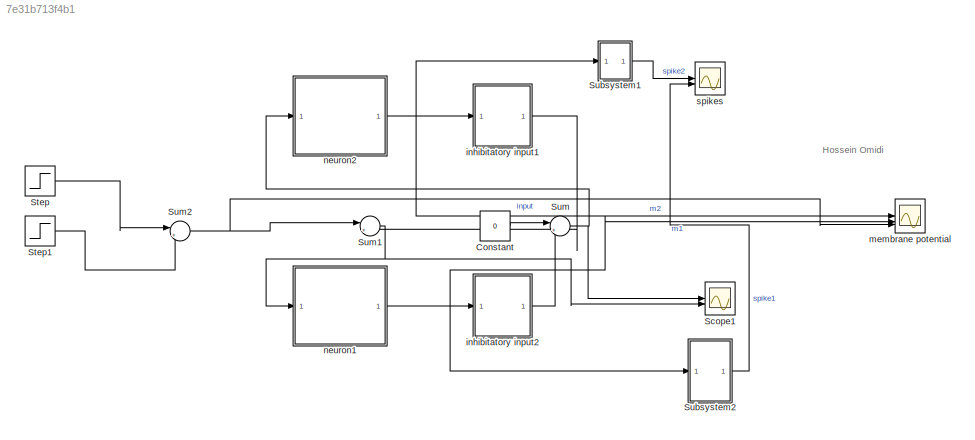
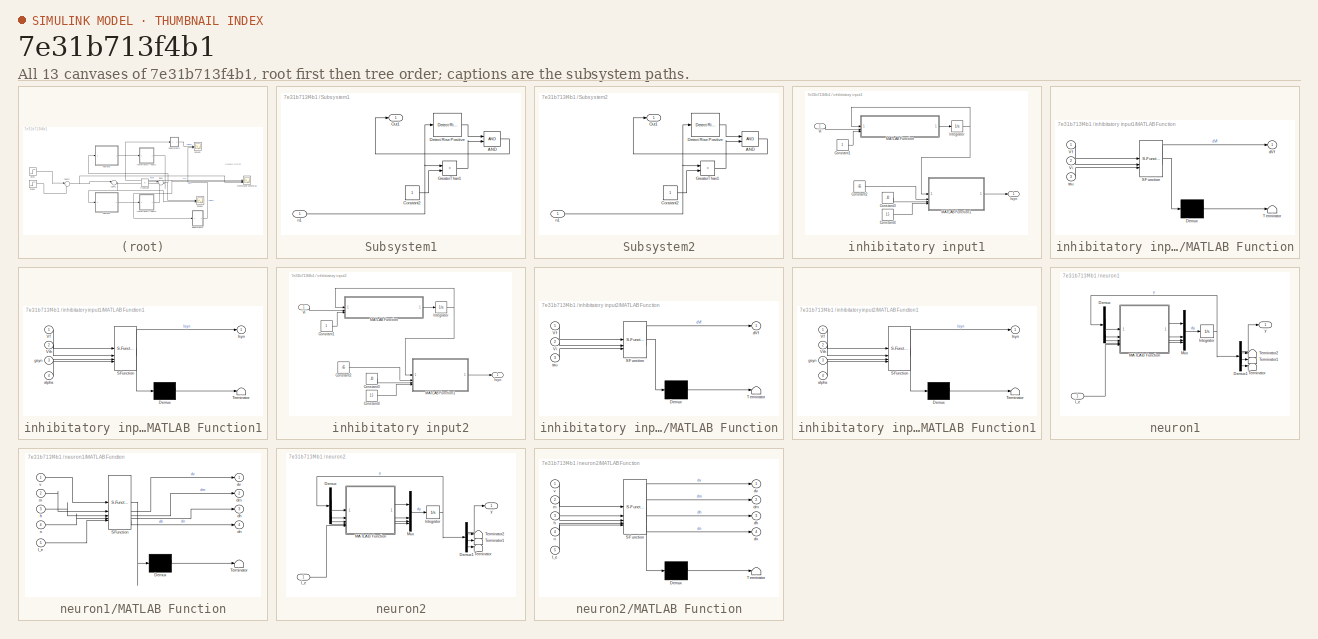
[diagram: thumbnail index - all 13 canvases of the model, root first then tree order]
MODEL slx_7e31b713f4b1
KIND model
CONFIG AbsTol = auto
CONFIG EnableMultiTasking = off
CONFIG FixedStep = auto
CONFIG MaxStep = auto
CONFIG MinStep = auto
CONFIG RelTol = 1e-3
CONFIG SampleTimeConstraint = Unconstrained
CONFIG SolverName = VariableStepAuto
CONFIG StartTime = 0.0
CONFIG StopTime = 1
BLOCK [Constant] Constant
  Value = 0
BLOCK [Scope] Scope1
  Floating = off
  NumInputPorts = 2
  ScopeSpecificationString = Simulink.scopes.TimeScopeBlockCfg('CurrentConfiguration', extmgr.ConfigurationSet(extmgr.Configuration('Core','General UI',true),extmgr.Configuration('Core','Source UI',true),extmgr.Configuration('Sources','WiredSimulink',true,'DataLoggingVariableName','ScopeData1'),extmgr.Configuration('Visuals','Time Domain',true,'SerializedDisplays',{struct('MinYLimReal','-12.5','MaxYLimReal','12.5','YLabelReal...<+1422ch>
BLOCK [Step] Step
  After = 10
  SampleTime = 0
  Time = .3
BLOCK [Step] Step1
  After = -10
  SampleTime = 0
  Time = .31
BLOCK [SubSystem] Subsystem1
BLOCK [Logic] Subsystem1/AND
  AllPortsSameDT = off
  IconShape = distinctive
  OutDataTypeStr = boolean
BLOCK [Constant] Subsystem1/Constant2
BLOCK [Reference] Subsystem1/Detect Rise Positive  REF=simulink/Logic and Bit
Operations/Detect Rise
Positive
  SourceBlock = simulink/Logic and Bit\nOperations/Detect Rise\nPositive
  SourceType = Detect Rise Positive
BLOCK [RelationalOperator] Subsystem1/GreaterThan1
  InputSameDT = off
  Operator = >
  OutDataTypeStr = boolean
  RndMeth = Simplest
BLOCK [Outport] Subsystem1/Out1
BLOCK [Inport] Subsystem1/n1
BLOCK [SubSystem] Subsystem2
BLOCK [Logic] Subsystem2/AND
  AllPortsSameDT = off
  IconShape = distinctive
  OutDataTypeStr = boolean
BLOCK [Constant] Subsystem2/Constant2
BLOCK [Reference] Subsystem2/Detect Rise Positive  REF=simulink/Logic and Bit
Operations/Detect Rise
Positive
  SourceBlock = simulink/Logic and Bit\nOperations/Detect Rise\nPositive
  SourceType = Detect Rise Positive
BLOCK [RelationalOperator] Subsystem2/GreaterThan1
  InputSameDT = off
  Operator = >
  OutDataTypeStr = boolean
  RndMeth = Simplest
BLOCK [Outport] Subsystem2/Out1
BLOCK [Inport] Subsystem2/n1
BLOCK [Sum] Sum
  Inputs = |++
BLOCK [Sum] Sum1
  Inputs = |++
BLOCK [Sum] Sum2
  Inputs = |++
BLOCK [SubSystem] inhibitatory input1
BLOCK [Constant] inhibitatory input1/Constant1
BLOCK [Constant] inhibitatory input1/Constant2
  Value = -65
BLOCK [Constant] inhibitatory input1/Constant3
  Value = -10
BLOCK [Constant] inhibitatory input1/Constant4
  Value = 1.5
BLOCK [Integrator] inhibitatory input1/Integrator
BLOCK [Outport] inhibitatory input1/Isyn
BLOCK [SubSystem] inhibitatory input1/MATLAB Function
  ErrorFcn = Stateflow.Translate.translate
  LibrarySourceBlock = simulink/User-Defined\nFunctions/MATLAB Function
  PermitHierarchicalResolution = ExplicitOnly
  SFBlockType = MATLAB Function
  TreatAsAtomicUnit = on
BLOCK [Demux] inhibitatory input1/MATLAB Function/ Demux 
  Outputs = 1
BLOCK [S-Function] inhibitatory input1/MATLAB Function/ SFunction 
  EnableBusSupport = on
  FunctionName = sf_sfun
  PortCounts = [3 2]
  SFcnIsStateOwnerBlock = off
  SFunctionDeploymentMode = off
  Tag = Stateflow S-Function 5
BLOCK [Terminator] inhibitatory input1/MATLAB Function/ Terminator 
BLOCK [Inport] inhibitatory input1/MATLAB Function/Vf
BLOCK [Inport] inhibitatory input1/MATLAB Function/Vi
  Port = 2
BLOCK [Outport] inhibitatory input1/MATLAB Function/dVf
BLOCK [Inport] inhibitatory input1/MATLAB Function/tau
  Port = 3
BLOCK [SubSystem] inhibitatory input1/MATLAB Function1
  ErrorFcn = Stateflow.Translate.translate
  LibrarySourceBlock = simulink/User-Defined\nFunctions/MATLAB Function
  PermitHierarchicalResolution = ExplicitOnly
  SFBlockType = MATLAB Function
  TreatAsAtomicUnit = on
BLOCK [Demux] inhibitatory input1/MATLAB Function1/ Demux 
  Outputs = 1
BLOCK [S-Function] inhibitatory input1/MATLAB Function1/ SFunction 
  EnableBusSupport = on
  FunctionName = sf_sfun
  PortCounts = [4 2]
  SFcnIsStateOwnerBlock = off
  SFunctionDeploymentMode = off
  Tag = Stateflow S-Function 6
BLOCK [Terminator] inhibitatory input1/MATLAB Function1/ Terminator 
BLOCK [Outport] inhibitatory input1/MATLAB Function1/Isyn
BLOCK [Inport] inhibitatory input1/MATLAB Function1/Vf
BLOCK [Inport] inhibitatory input1/MATLAB Function1/Vth
  Port = 2
BLOCK [Inport] inhibitatory input1/MATLAB Function1/alpha
  Port = 4
BLOCK [Inport] inhibitatory input1/MATLAB Function1/gsyn
  Port = 3
BLOCK [Inport] inhibitatory input1/Vi
BLOCK [SubSystem] inhibitatory input2
BLOCK [Constant] inhibitatory input2/Constant1
BLOCK [Constant] inhibitatory input2/Constant2
  Value = -65
BLOCK [Constant] inhibitatory input2/Constant3
  Value = -10
BLOCK [Constant] inhibitatory input2/Constant4
  Value = 1.5
BLOCK [Integrator] inhibitatory input2/Integrator
BLOCK [Outport] inhibitatory input2/Isyn
BLOCK [SubSystem] inhibitatory input2/MATLAB Function
  ErrorFcn = Stateflow.Translate.translate
  LibrarySourceBlock = simulink/User-Defined\nFunctions/MATLAB Function
  PermitHierarchicalResolution = ExplicitOnly
  SFBlockType = MATLAB Function
  TreatAsAtomicUnit = on
BLOCK [Demux] inhibitatory input2/MATLAB Function/ Demux 
  Outputs = 1
BLOCK [S-Function] inhibitatory input2/MATLAB Function/ SFunction 
  EnableBusSupport = on
  FunctionName = sf_sfun
  PortCounts = [3 2]
  SFcnIsStateOwnerBlock = off
  SFunctionDeploymentMode = off
  Tag = Stateflow S-Function 1
BLOCK [Terminator] inhibitatory input2/MATLAB Function/ Terminator 
BLOCK [Inport] inhibitatory input2/MATLAB Function/Vf
BLOCK [Inport] inhibitatory input2/MATLAB Function/Vi
  Port = 2
BLOCK [Outport] inhibitatory input2/MATLAB Function/dVf
BLOCK [Inport] inhibitatory input2/MATLAB Function/tau
  Port = 3
BLOCK [SubSystem] inhibitatory input2/MATLAB Function1
  ErrorFcn = Stateflow.Translate.translate
  LibrarySourceBlock = simulink/User-Defined\nFunctions/MATLAB Function
  PermitHierarchicalResolution = ExplicitOnly
  SFBlockType = MATLAB Function
  TreatAsAtomicUnit = on
BLOCK [Demux] inhibitatory input2/MATLAB Function1/ Demux 
  Outputs = 1
BLOCK [S-Function] inhibitatory input2/MATLAB Function1/ SFunction 
  EnableBusSupport = on
  FunctionName = sf_sfun
  PortCounts = [4 2]
  SFcnIsStateOwnerBlock = off
  SFunctionDeploymentMode = off
  Tag = Stateflow S-Function 3
BLOCK [Terminator] inhibitatory input2/MATLAB Function1/ Terminator 
BLOCK [Outport] inhibitatory input2/MATLAB Function1/Isyn
BLOCK [Inport] inhibitatory input2/MATLAB Function1/Vf
BLOCK [Inport] inhibitatory input2/MATLAB Function1/Vth
  Port = 2
BLOCK [Inport] inhibitatory input2/MATLAB Function1/alpha
  Port = 4
BLOCK [Inport] inhibitatory input2/MATLAB Function1/gsyn
  Port = 3
BLOCK [Inport] inhibitatory input2/Vi
BLOCK [Scope] membrane potential
  Floating = off
  NumInputPorts = 3
  ScopeSpecificationString = Simulink.scopes.TimeScopeBlockCfg('CurrentConfiguration', extmgr.ConfigurationSet(extmgr.Configuration('Core','General UI',true),extmgr.Configuration('Core','Source UI',true),extmgr.Configuration('Sources','WiredSimulink',true),extmgr.Configuration('Visuals','Time Domain',true,'SerializedDisplays',{struct('MinYLimReal','-103.68069','MaxYLimReal','62.6377','YLabelReal','','MinYLimMag',' 0.00000','M...<+2774ch>
BLOCK [SubSystem] neuron1
BLOCK [Demux] neuron1/Demux
BLOCK [Demux] neuron1/Demux1
BLOCK [Inport] neuron1/I_e
BLOCK [Integrator] neuron1/Integrator
  InitialCondition = [-65; 0.05; 0.60; 0.32]
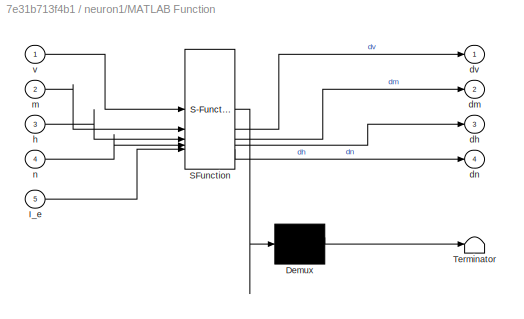
BLOCK [SubSystem] neuron1/MATLAB Function
  ErrorFcn = Stateflow.Translate.translate
  LibrarySourceBlock = simulink/User-Defined\nFunctions/MATLAB Function
  PermitHierarchicalResolution = ExplicitOnly
  SFBlockType = MATLAB Function
  TreatAsAtomicUnit = on
BLOCK [Demux] neuron1/MATLAB Function/ Demux 
  Outputs = 1
BLOCK [S-Function] neuron1/MATLAB Function/ SFunction 
  EnableBusSupport = on
  FunctionName = sf_sfun
  PortCounts = [5 5]
  SFcnIsStateOwnerBlock = off
  SFunctionDeploymentMode = off
  Tag = Stateflow S-Function 4
BLOCK [Terminator] neuron1/MATLAB Function/ Terminator 
BLOCK [Inport] neuron1/MATLAB Function/I_e
  Port = 5
BLOCK [Outport] neuron1/MATLAB Function/dh
  Port = 3
BLOCK [Outport] neuron1/MATLAB Function/dm
  Port = 2
BLOCK [Outport] neuron1/MATLAB Function/dn
  Port = 4
BLOCK [Outport] neuron1/MATLAB Function/dv
BLOCK [Inport] neuron1/MATLAB Function/h
  Port = 3
BLOCK [Inport] neuron1/MATLAB Function/m
  Port = 2
BLOCK [Inport] neuron1/MATLAB Function/n
  Port = 4
BLOCK [Inport] neuron1/MATLAB Function/v
BLOCK [Mux] neuron1/Mux
  DisplayOption = bar
BLOCK [Terminator] neuron1/Terminator
BLOCK [Terminator] neuron1/Terminator1
BLOCK [Terminator] neuron1/Terminator2
BLOCK [Outport] neuron1/y
BLOCK [SubSystem] neuron2
BLOCK [Demux] neuron2/Demux
BLOCK [Demux] neuron2/Demux1
BLOCK [Inport] neuron2/I_e
BLOCK [Integrator] neuron2/Integrator
  InitialCondition = [-65; 0.05; 0.60; 0.32]
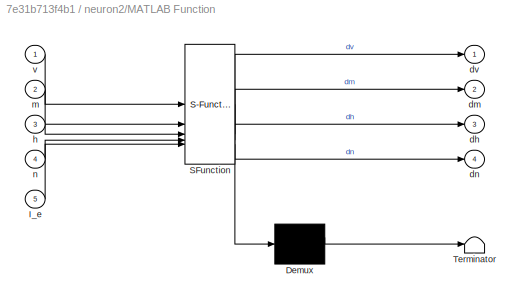
BLOCK [SubSystem] neuron2/MATLAB Function
  ErrorFcn = Stateflow.Translate.translate
  LibrarySourceBlock = simulink/User-Defined\nFunctions/MATLAB Function
  PermitHierarchicalResolution = ExplicitOnly
  SFBlockType = MATLAB Function
  TreatAsAtomicUnit = on
BLOCK [Demux] neuron2/MATLAB Function/ Demux 
  Outputs = 1
BLOCK [S-Function] neuron2/MATLAB Function/ SFunction 
  EnableBusSupport = on
  FunctionName = sf_sfun
  PortCounts = [5 5]
  SFcnIsStateOwnerBlock = off
  SFunctionDeploymentMode = off
  Tag = Stateflow S-Function 2
BLOCK [Terminator] neuron2/MATLAB Function/ Terminator 
BLOCK [Inport] neuron2/MATLAB Function/I_e
  Port = 5
BLOCK [Outport] neuron2/MATLAB Function/dh
  Port = 3
BLOCK [Outport] neuron2/MATLAB Function/dm
  Port = 2
BLOCK [Outport] neuron2/MATLAB Function/dn
  Port = 4
BLOCK [Outport] neuron2/MATLAB Function/dv
BLOCK [Inport] neuron2/MATLAB Function/h
  Port = 3
BLOCK [Inport] neuron2/MATLAB Function/m
  Port = 2
BLOCK [Inport] neuron2/MATLAB Function/n
  Port = 4
BLOCK [Inport] neuron2/MATLAB Function/v
BLOCK [Mux] neuron2/Mux
  DisplayOption = bar
BLOCK [Terminator] neuron2/Terminator
BLOCK [Terminator] neuron2/Terminator1
BLOCK [Terminator] neuron2/Terminator2
BLOCK [Outport] neuron2/y
BLOCK [Scope] spikes
  Floating = off
  NumInputPorts = 2
  ScopeSpecificationString = Simulink.scopes.TimeScopeBlockCfg('CurrentConfiguration', extmgr.ConfigurationSet(extmgr.Configuration('Core','General UI',true),extmgr.Configuration('Core','Source UI',true),extmgr.Configuration('Sources','WiredSimulink',true,'DataLoggingVariableName','ScopeData1'),extmgr.Configuration('Visuals','Time Domain',true,'SerializedDisplays',{struct('MinYLimReal','-0.125','MaxYLimReal','1.125','YLabelRe...<+2065ch>
ANNOTATION (root): Hossein Omidi
LINE Constant:1 -> Sum:1
LINE Step1:1 -> Sum2:2
LINE Step:1 -> Sum2:1
LINE Subsystem1/AND:1 -> Subsystem1/Out1:1
LINE Subsystem1/Constant2:1 -> Subsystem1/GreaterThan1:2
LINE Subsystem1/Detect Rise Positive:1 -> Subsystem1/AND:1
LINE Subsystem1/GreaterThan1:1 -> Subsystem1/AND:2
NET Subsystem1/n1:1 -> Subsystem1/Detect Rise Positive:1, Subsystem1/GreaterThan1:1
LINE Subsystem1:1 -> spikes:1
LINE Subsystem2/AND:1 -> Subsystem2/Out1:1
LINE Subsystem2/Constant2:1 -> Subsystem2/GreaterThan1:2
LINE Subsystem2/Detect Rise Positive:1 -> Subsystem2/AND:1
LINE Subsystem2/GreaterThan1:1 -> Subsystem2/AND:2
NET Subsystem2/n1:1 -> Subsystem2/Detect Rise Positive:1, Subsystem2/GreaterThan1:1
LINE Subsystem2:1 -> spikes:2
NET Sum1:1 -> Scope1:2, neuron1:1
NET Sum2:1 -> Sum1:1, membrane potential:3
NET Sum:1 -> Scope1:1, neuron2:1
LINE inhibitatory input1/Constant1:1 -> inhibitatory input1/MATLAB Function:3
LINE inhibitatory input1/Constant2:1 -> inhibitatory input1/MATLAB Function1:2
LINE inhibitatory input1/Constant3:1 -> inhibitatory input1/MATLAB Function1:3
LINE inhibitatory input1/Constant4:1 -> inhibitatory input1/MATLAB Function1:4
NET inhibitatory input1/Integrator:1 -> inhibitatory input1/MATLAB Function1:1, inhibitatory input1/MATLAB Function:1
LINE inhibitatory input1/MATLAB Function1:1 -> inhibitatory input1/Isyn:1
LINE inhibitatory input1/MATLAB Function:1 -> inhibitatory input1/Integrator:1
LINE inhibitatory input1/Vi:1 -> inhibitatory input1/MATLAB Function:2
LINE inhibitatory input1:1 -> Sum1:2
LINE inhibitatory input2/Constant1:1 -> inhibitatory input2/MATLAB Function:3
LINE inhibitatory input2/Constant2:1 -> inhibitatory input2/MATLAB Function1:2
LINE inhibitatory input2/Constant3:1 -> inhibitatory input2/MATLAB Function1:3
LINE inhibitatory input2/Constant4:1 -> inhibitatory input2/MATLAB Function1:4
NET inhibitatory input2/Integrator:1 -> inhibitatory input2/MATLAB Function1:1, inhibitatory input2/MATLAB Function:1
LINE inhibitatory input2/MATLAB Function1:1 -> inhibitatory input2/Isyn:1
LINE inhibitatory input2/MATLAB Function:1 -> inhibitatory input2/Integrator:1
LINE inhibitatory input2/Vi:1 -> inhibitatory input2/MATLAB Function:2
LINE inhibitatory input2:1 -> Sum:2
LINE neuron1/Demux1:1 -> neuron1/y:1
LINE neuron1/Demux1:2 -> neuron1/Terminator2:1
LINE neuron1/Demux1:3 -> neuron1/Terminator1:1
LINE neuron1/Demux1:4 -> neuron1/Terminator:1
LINE neuron1/Demux:1 -> neuron1/MATLAB Function:1
LINE neuron1/Demux:2 -> neuron1/MATLAB Function:2
LINE neuron1/Demux:3 -> neuron1/MATLAB Function:3
LINE neuron1/Demux:4 -> neuron1/MATLAB Function:4
LINE neuron1/I_e:1 -> neuron1/MATLAB Function:5
NET neuron1/Integrator:1 -> neuron1/Demux1:1, neuron1/Demux:1
LINE neuron1/MATLAB Function:1 -> neuron1/Mux:1
LINE neuron1/MATLAB Function:2 -> neuron1/Mux:2
LINE neuron1/MATLAB Function:3 -> neuron1/Mux:3
LINE neuron1/MATLAB Function:4 -> neuron1/Mux:4
LINE neuron1/Mux:1 -> neuron1/Integrator:1
NET neuron1:1 -> Subsystem2:1, inhibitatory input2:1, membrane potential:2
LINE neuron2/Demux1:1 -> neuron2/y:1
LINE neuron2/Demux1:2 -> neuron2/Terminator2:1
LINE neuron2/Demux1:3 -> neuron2/Terminator1:1
LINE neuron2/Demux1:4 -> neuron2/Terminator:1
LINE neuron2/Demux:1 -> neuron2/MATLAB Function:1
LINE neuron2/Demux:2 -> neuron2/MATLAB Function:2
LINE neuron2/Demux:3 -> neuron2/MATLAB Function:3
LINE neuron2/Demux:4 -> neuron2/MATLAB Function:4
LINE neuron2/I_e:1 -> neuron2/MATLAB Function:5
NET neuron2/Integrator:1 -> neuron2/Demux1:1, neuron2/Demux:1
LINE neuron2/MATLAB Function:1 -> neuron2/Mux:1
LINE neuron2/MATLAB Function:2 -> neuron2/Mux:2
LINE neuron2/MATLAB Function:3 -> neuron2/Mux:3
LINE neuron2/MATLAB Function:4 -> neuron2/Mux:4
LINE neuron2/Mux:1 -> neuron2/Integrator:1
NET neuron2:1 -> Subsystem1:1, inhibitatory input1:1, membrane potential:1
note: NET lines group one-source signal fan-out (src -> all destinations, sorted); 1:1 wires keep LINE
CHART inhibitatory input2/MATLAB Function states=1 transitions=1
  STATE_LABEL 'eML_blk_kernel()'
  STATE_LABEL 'SCRIPT:\nfunction dVf = synapse_filter_deriv(Vf, Vi, tau)\n% ODE for the synaptic low-pass filter state Vf\n% tau * dVf/dt = Vpre - Vf  ->  dVf/dt = (Vpre - Vf)/tau\n% Inputs:\n%   Vf   - current filter state (mV)\n%   Vpre - presynaptic membrane voltage (mV)\n%   tau  - filter time constant (ms, >0)\n% Output:\n%   dVf  - time derivative of Vf (mV/ms)\n\n% numeric safety\n\ndVf = 1000*(Vi - Vf) / tau;\nend\n'
CHART neuron2/MATLAB Function states=1 transitions=1
  STATE_LABEL 'eML_blk_kernel()'
  STATE_LABEL 'SCRIPT:\nfunction [dv, dm, dh, dn] = hh_block(v, m, h, n, I_e)\n% HH ODEs for Simulink MATLAB Function block\n% Inputs: v,m,h,n (states), I_e total injected current (uA/cm^2)\n% Outputs: dv,dm,dh,dn (state derivatives)\n\n    % Params\n    C_m = 1.0; gNa = 120.0; gK = 36.0; gL = 0.3;\n    ENa = 50.0; EK = -77.0; EL = -54.387;\n\n    % Safe division\n    am_num = 0.1 * (v + 40.0);\n    am_den = 1.0 - exp(-(v +...<+1060ch>'
CHART inhibitatory input2/MATLAB Function1 states=1 transitions=1
  STATE_LABEL 'eML_blk_kernel()'
  STATE_LABEL "SCRIPT:\nfunction Isyn = synapse_current(Vf, Vth, gsyn, alpha)\n% Current-based synapse (paper's model)\n% Isyn = gsyn / (1 + exp(-alpha*(Vf - Vth)))\n% Inputs:\n%   Vf    - filtered presynaptic voltage (mV)\n%   Vth   - threshold (mV)\n%   gsyn  - synaptic strength (uA/cm^2). >0 excitatory, <0 inhibitory\n%   alpha - sigmoid slope (>0)\n% Output:\n%   Isyn  - synaptic current to inject into postsynaptic ne...<+135ch>"
CHART neuron1/MATLAB Function states=1 transitions=1
  STATE_LABEL 'eML_blk_kernel()'
  STATE_LABEL 'SCRIPT:\nfunction [dv, dm, dh, dn] = hh_block(v, m, h, n, I_e)\n% HH ODEs for Simulink MATLAB Function block\n% Inputs: v,m,h,n (states), I_e total injected current (uA/cm^2)\n% Outputs: dv,dm,dh,dn (state derivatives)\n\n    % Params\n    C_m = 1.0; gNa = 120.0; gK = 36.0; gL = 0.3;\n    ENa = 50.0; EK = -77.0; EL = -54.387;\n\n    % Safe division\n    am_num = 0.1 * (v + 40.0);\n    am_den = 1.0 - exp(-(v +...<+1060ch>'
CHART inhibitatory input1/MATLAB Function states=1 transitions=1
  STATE_LABEL 'eML_blk_kernel()'
  STATE_LABEL 'SCRIPT:\nfunction dVf = synapse_filter_deriv(Vf, Vi, tau)\n% ODE for the synaptic low-pass filter state Vf\n% tau * dVf/dt = Vpre - Vf  ->  dVf/dt = (Vpre - Vf)/tau\n% Inputs:\n%   Vf   - current filter state (mV)\n%   Vpre - presynaptic membrane voltage (mV)\n%   tau  - filter time constant (ms, >0)\n% Output:\n%   dVf  - time derivative of Vf (mV/ms)\n\n% numeric safety\n\ndVf = 1000*(Vi - Vf) / tau;\nend\n'
CHART inhibitatory input1/MATLAB Function1 states=1 transitions=1
  STATE_LABEL 'eML_blk_kernel()'
  STATE_LABEL "SCRIPT:\nfunction Isyn = synapse_current(Vf, Vth, gsyn, alpha)\n% Current-based synapse (paper's model)\n% Isyn = gsyn / (1 + exp(-alpha*(Vf - Vth)))\n% Inputs:\n%   Vf    - filtered presynaptic voltage (mV)\n%   Vth   - threshold (mV)\n%   gsyn  - synaptic strength (uA/cm^2). >0 excitatory, <0 inhibitory\n%   alpha - sigmoid slope (>0)\n% Output:\n%   Isyn  - synaptic current to inject into postsynaptic ne...<+135ch>"
CHART  states=0 transitions=0
CHART  states=0 transitions=0
CHART  states=0 transitions=0
CHART  states=0 transitions=0
CHART  states=0 transitions=0
CHART  states=0 transitions=0
